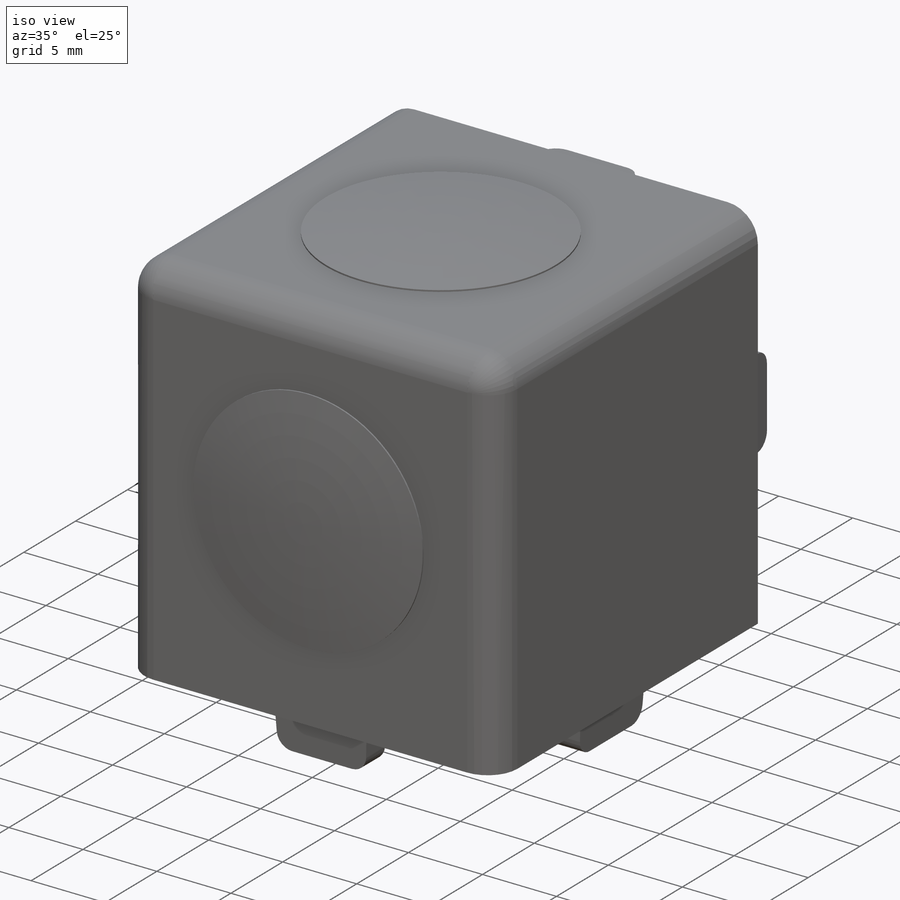
[diagram: iso view]
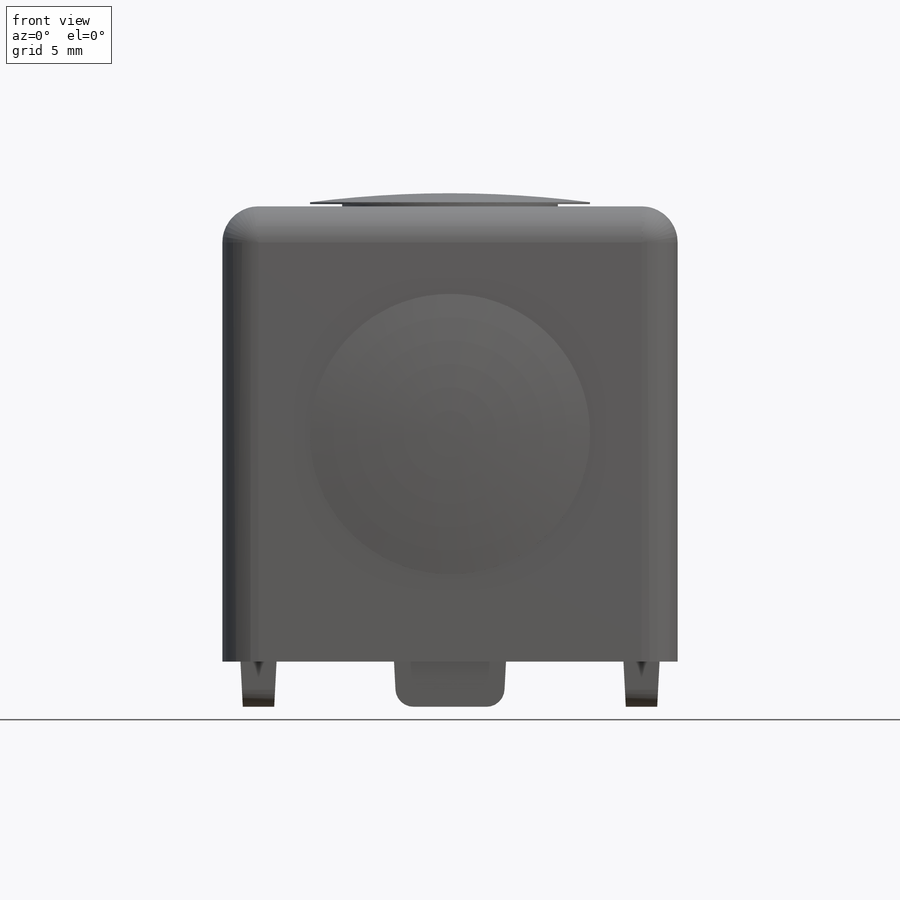
[diagram: front view]
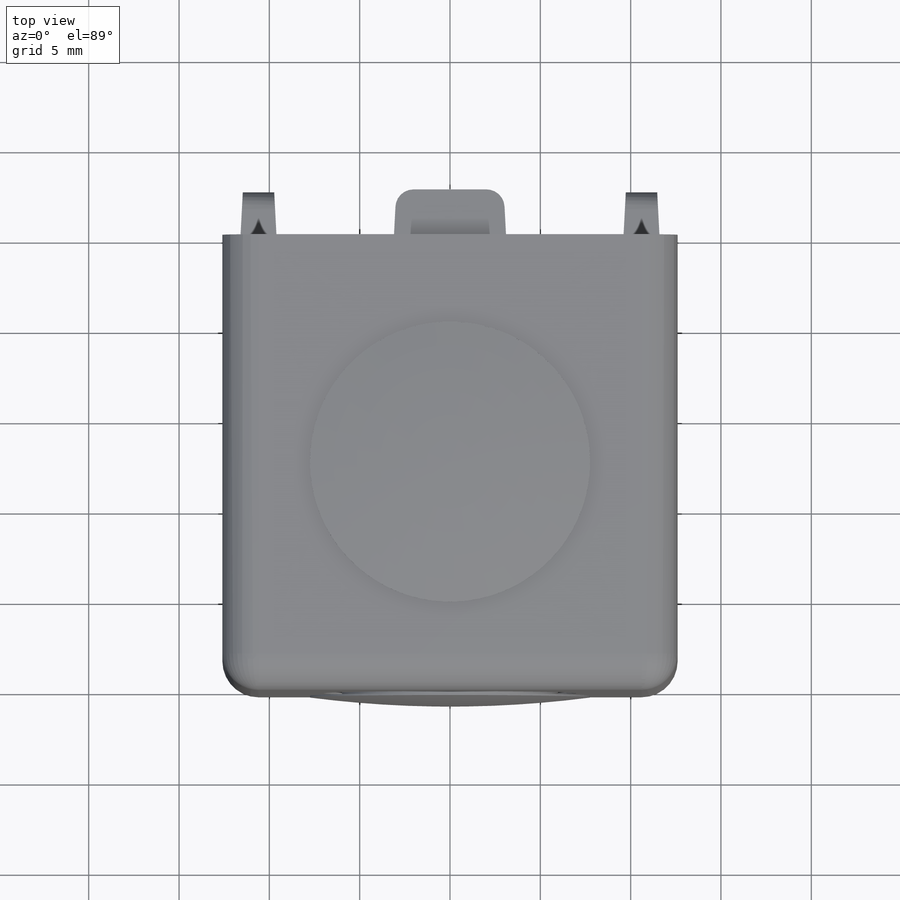
[diagram: top view]
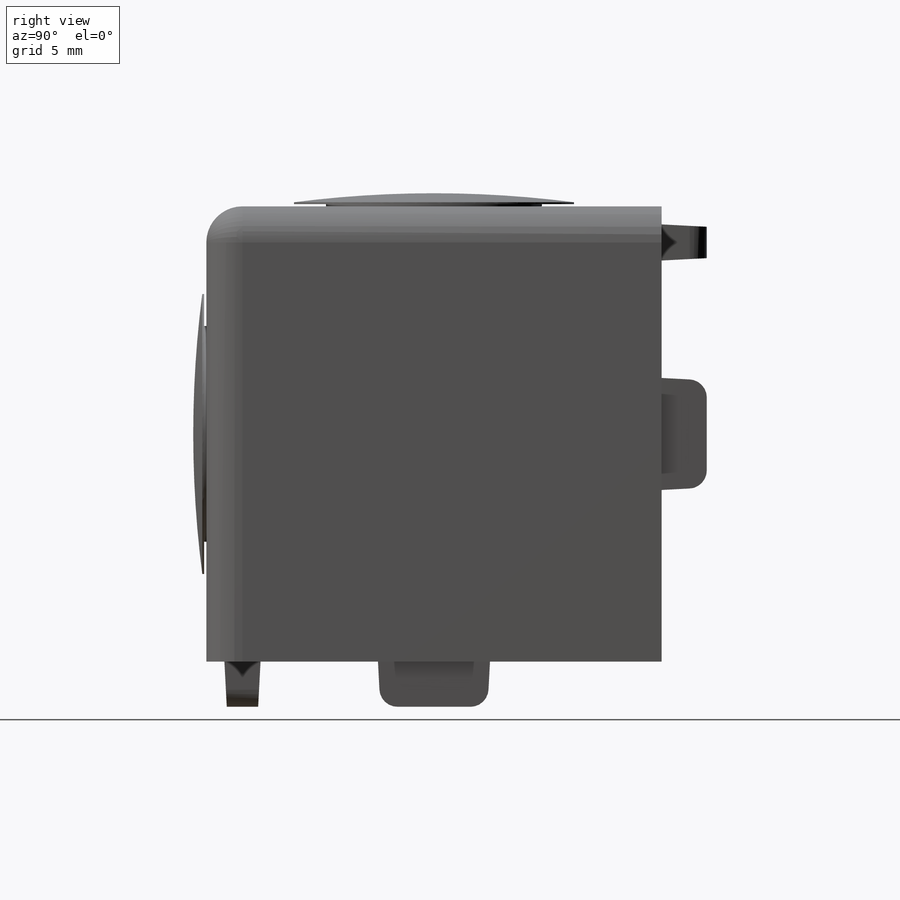
[diagram: right view]
SOLIDWORKS PART (.sldprt)
format: sldprt  version: not decoded by parser v0  size: 611,328 bytes
history: native  units: mm
features: sketch x6, fillet x4, extrude x2, cut_extrude x2, mirror x2, material x1, cut_revolve x1, plane x1, revolve x1 (+15 scaffold rows collapsed)
feature tree (35):
  scaffold x15  (default folders/planes/origin — collapsed)
  material  "Material <not specified>"
  sketch  "Sketch1"  dims[D1=25.2mm]
  extrude  "Boss-Extrude1"  Depth=25.2mm
  sketch  "Sketch2"  dims[c1.D4=1.0mm c1.D1=~22.546344mm c2.D1=1.5deg c2.D2=12.0mm c2.D3=1.0mm c2.D5=7.0mm c3.D5=45.0deg c3.D6=7.2mm c3.D7=4.0mm]
  cut_revolve  "Cut-Revolve1"  Angle=360deg
  sketch  "Sketch3"  dims[D1=6.2mm D2=2.0mm D3=1.0mm]
  extrude  "Boss-Extrude2"  Depth=2.5mm
  fillet  "Fillet1"  Radius=1mm
  sketch  "Sketch4"  dims[D1=10.0mm D2=3.0mm D3=25.2mm]
  cut_extrude  "Cut-Extrude1"  Depth=5mm
  fillet  "Fillet2"  Radius=0.3mm
  plane  "Plane1"
  mirror  "Mirror1"
  sketch  "Sketch5"  dims[D1=6.5mm D2=6.0mm]
  cut_extrude  "Cut-Extrude2"  Depth=6mm
  fillet  "Fillet3"  Radius=0.5mm
  fillet  "Fillet4"  Radius=2mm
  sketch  "Sketch6"  dims[D1=4.0mm D2=0.6mm D3=1.25mm D4=0.125mm D5=0.025mm D6=1.25mm D7=0.5mm D8=0.75mm]
  revolve  "Revolve1"  Angle=360deg
  mirror  "Mirror2"
decode coverage: 16 of 18 modeling features carry decoded parameters
note: ~ marks probable driven/reference dimensions
note: suppression state not decoded; provenance and decode notes live in map.json
